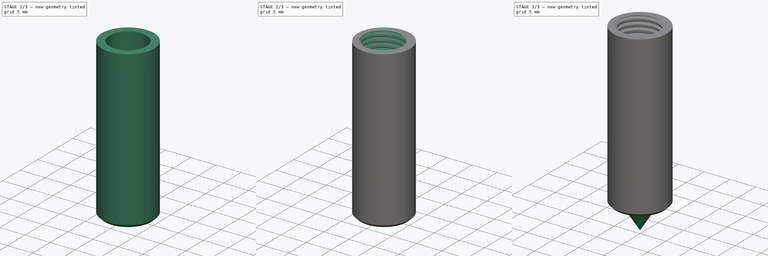
[diagram: build sequence overview — one tinted view per stage of 3, left to right]
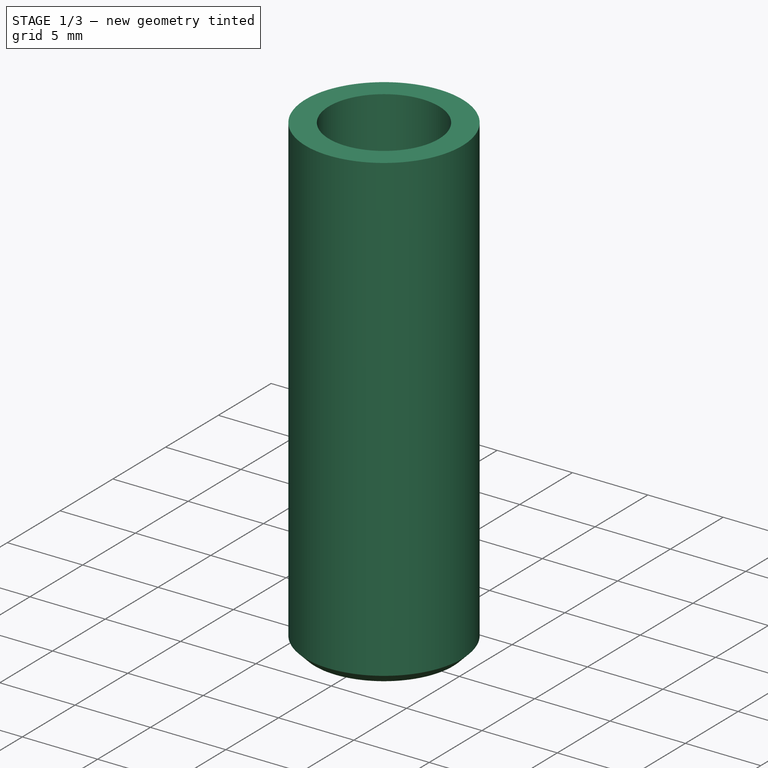
[diagram: stage 1 of 3 — iso view after this stage's code; geometry added in this stage tinted green]
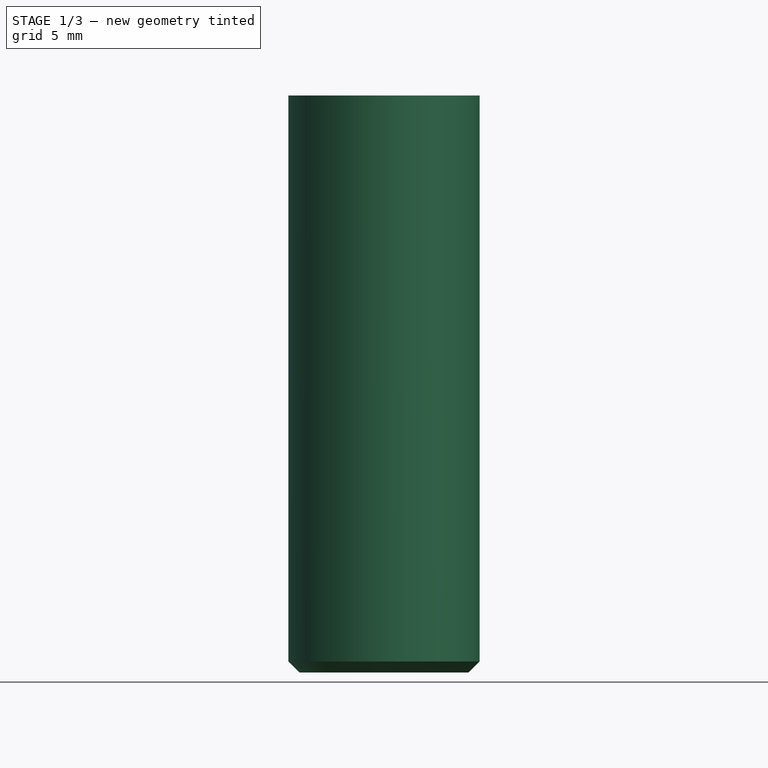
[diagram: stage 1 of 3 — front view after this stage's code; geometry added in this stage tinted green]
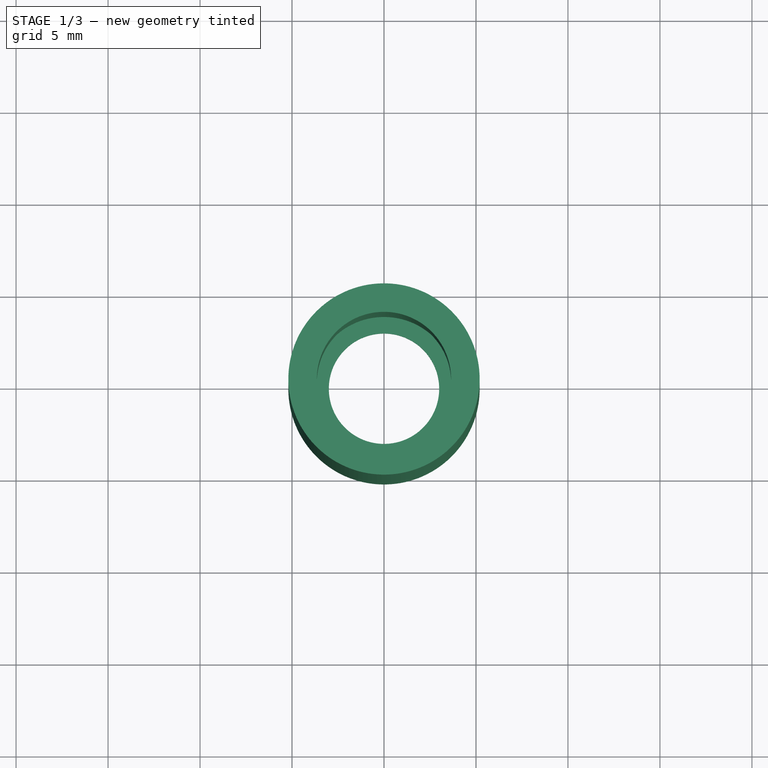
[diagram: stage 1 of 3 — top view after this stage's code; geometry added in this stage tinted green]
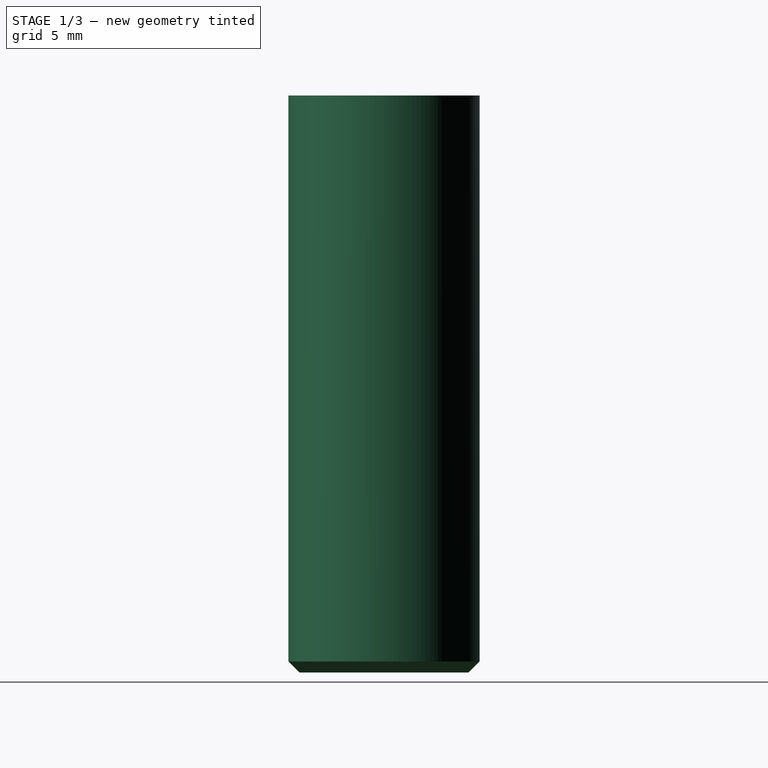
[diagram: stage 1 of 3 — right view after this stage's code; geometry added in this stage tinted green]
FCSTD DOCUMENT  (FreeCAD 2023.131R26244 +5365 (Git))
Label: PortaPunta-PINDA
License: All rights reserved
LicenseURL: http://en.wikipedia.org/wiki/All_rights_reserved
objects: Sketcher::SketchObject×3, PartDesign::Revolution×2, PartDesign::Body×2, PartDesign::Pocket×1, Part::SubShapeBinder×1, PartDesign::Chamfer×1, PartDesign::Hole×1
note: 24 computed .brp shape members not serialized (recipe doc carries the construction recipe); baked Part::Feature solids carry a one-line shape summary decoded from their .brp

FEATURE [PartDesign::Body] Body  label="Punta-CR-VPH1"
  AutoGroupSolids = false
  ClaimAllChildren = false
  ExportMode = 0
  FixShape = 1
  Group = -> [Sketch,Revolution,Sketch001,Pocket]
  InvalidShape = false
  Origin = -> Origin
  Tip = -> Pocket
  TreeRank = 12
  ValidateShape = false
  _ExportChildren = -> [Revolution,Pocket]
  _GroupVersion = 1
FEATURE [Part::SubShapeBinder] Import  label="Import(Sketch)"
  BindCopyOnChange = 0
  BindMode = 0
  ClaimChildren = false
  Context = -> Body001 [Import.]
  EdgeTolerance = 1e-06
  FillStyle = 0
  FixShape = 1
  Fuse = false
  InvalidShape = false
  MakeFace = false
  MergeEdges = true
  OffsetFill = false
  OffsetIntersection = false
  OffsetJoinType = 0
  OffsetOpenResult = false
  Outline = false
  PartialLoad = false
  Relative = true
  SplitEdges = false
  Support = -> [Body[Sketch.]]
  TightBound = false
  TreeRank = 30
  ValidateShape = false
  _Version = 8
FEATURE [Sketcher::SketchObject] Sketch002
  ArcFitTolerance = 1e-06
  AttachmentSupport = -> [XZ_Plane001]
  ExternalBSplineMaxDegree = 5
  ExternalBSplineTolerance = 0.0001
  ExternalGeometry = -> [Import]
  FixShape = 1
  FullyConstrained = true
  InternalTolerance = 1e-06
  InvalidShape = false
  MakeInternals = false
  MapMode = 5
  Placement = pos=(0,0,0) rot=(1,0,0;1.5708rad)
  Support = -> [XZ_Plane001]
  TreeRank = 29
  ValidateShape = false
  sketch-geometry (9):
    g0: LineSegment StartX=3.65 StartY=36 StartZ=0 EndX=3.65 EndY=25 EndZ=0
    g1: LineSegment StartX=3.65 StartY=25 StartZ=0 EndX=3.9 EndY=25 EndZ=0
    g2: LineSegment StartX=3.9 StartY=25 StartZ=0 EndX=3.9 EndY=5.63636 EndZ=0
    g3: LineSegment StartX=3.9 StartY=5.63636 StartZ=0 EndX=3 EndY=5.63636 EndZ=0
    g4: LineSegment StartX=3 StartY=5.63636 StartZ=0 EndX=3 EndY=4.63636 EndZ=0
    g5: LineSegment StartX=3 StartY=4.63636 StartZ=0 EndX=5.2 EndY=4.63636 EndZ=0
    g6: LineSegment StartX=5.2 StartY=4.63636 StartZ=0 EndX=5.2 EndY=36 EndZ=0
    g7: LineSegment StartX=5.2 StartY=36 StartZ=0 EndX=3.65 EndY=36 EndZ=0
    g8: GeomPoint [constr] X=3 Y=9.63636 Z=0
  constraints (27):
    c: Vertical(g0)
    c: Coincident(g0,g1)
    c: Coincident(g1,g2)
    c: Vertical(g2)
    c: Coincident(g2,g3)
    c: Horizontal(g3)
    c: Coincident(g3,g4)
    c: Vertical(g4)
    c: Coincident(g4,g5)
    c: Horizontal(g5)
    c: Coincident(g5,g6)
    c: Vertical(g6)
    c: Coincident(g6,g7)
    c: Coincident(g7,g0)
    c: Horizontal(g7)
    c: Distance(g-3,g2) = 0.3
    c: DistanceY(g-1,g-3) = 8.5
    c: Distance(g-3,g4) = 0.5
    c: Tangent(g1,g-4)
    c: Distance(g4) = 1
    c: Distance(g0) = 11
    c: DistanceX(g-2,g6) = 5.2
    c: DistanceX(g-2,g1) = 3.9
    c: Distance(g-4,g0) = 0.05
    c: PointOnObject(g8,g-3)
    c: PointOnObject(g8,g4)
    c: DistanceY(g3,g8) = 4
FEATURE [PartDesign::Revolution] Revolution001
  AddSubType = 0
  Angle = 360
  Axis = (0,-2e-16,1)
  Base = (0,0,0)
  ClaimChildren = false
  Fit = 0
  FitJoin = 0
  FixShape = 1
  InnerFit = 0
  InnerFitJoin = 0
  InvalidShape = false
  Linearize = true
  NewSolid = false
  Profile = -> Sketch002
  ReferenceAxis = -> Sketch002 [V_Axis]
  Reversed = true
  Suppress = false
  TreeRank = 31
  ValidateShape = false
  _ProfileBasedVersion = 1
FEATURE [PartDesign::Chamfer] Chamfer
  AddSubType = 0
  Angle = 45
  Base = -> Revolution001 [Face6]
  BaseFeature = -> Revolution001
  ChamferType = 0
  FixShape = 1
  FlipDirection = false
  InvalidShape = false
  NewSolid = false
  Size = 0.6
  Size2 = 1
  SupportTransform = false
  Suppress = false
  TreeRank = 32
  ValidateShape = false
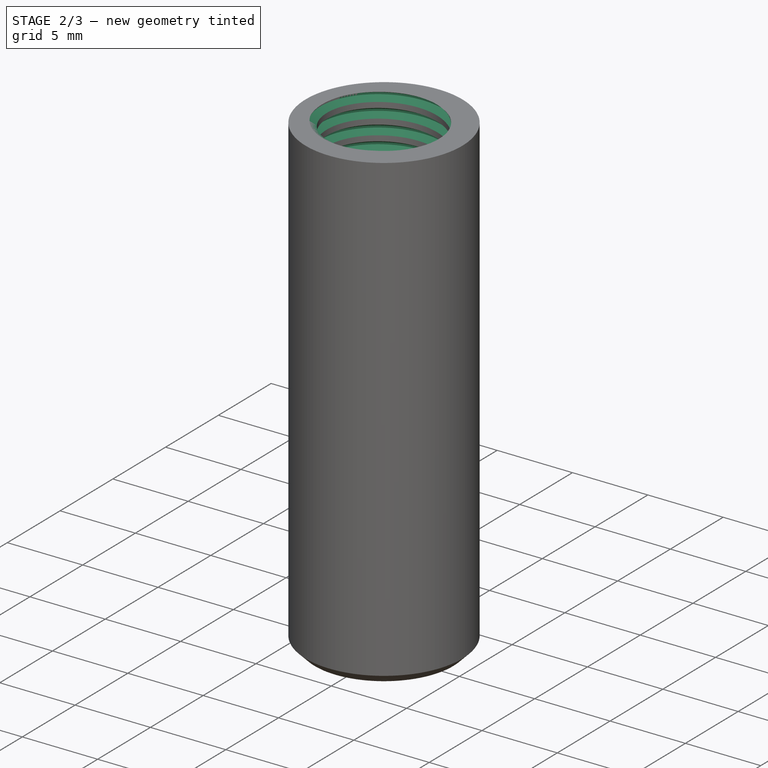
[diagram: stage 2 of 3 — iso view after this stage's code; geometry added in this stage tinted green]
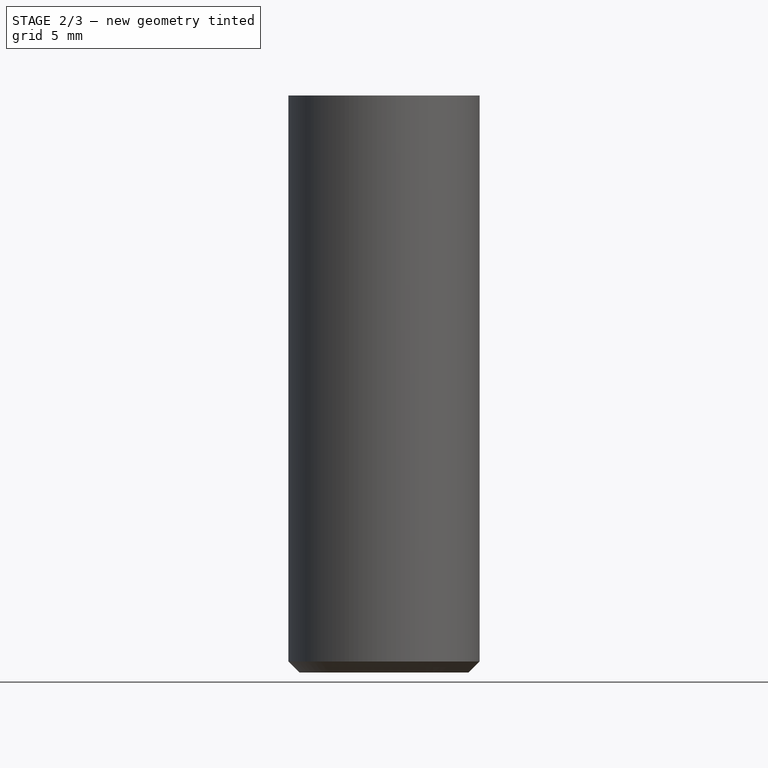
[diagram: stage 2 of 3 — front view after this stage's code; geometry added in this stage tinted green]
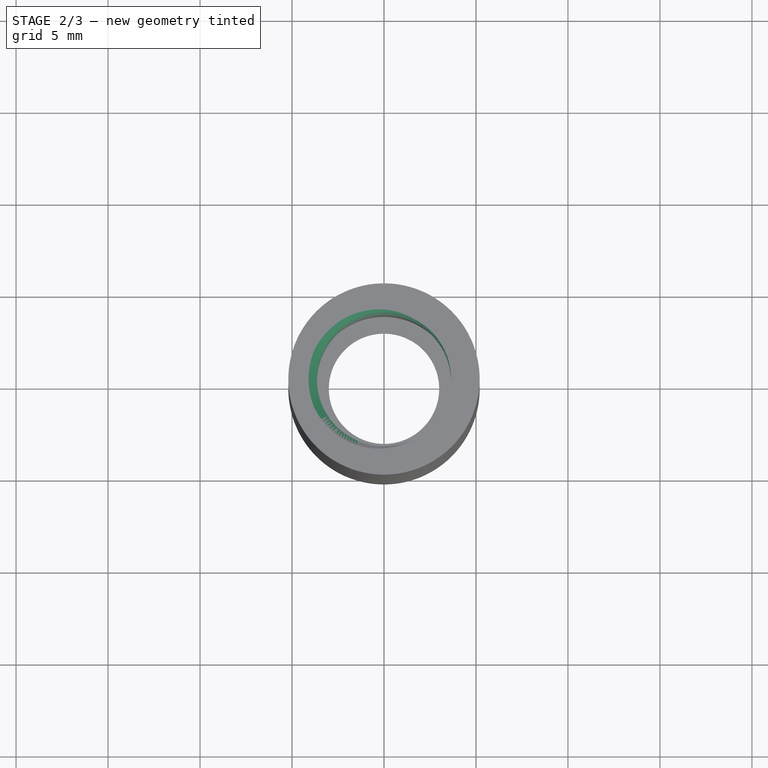
[diagram: stage 2 of 3 — top view after this stage's code; geometry added in this stage tinted green]
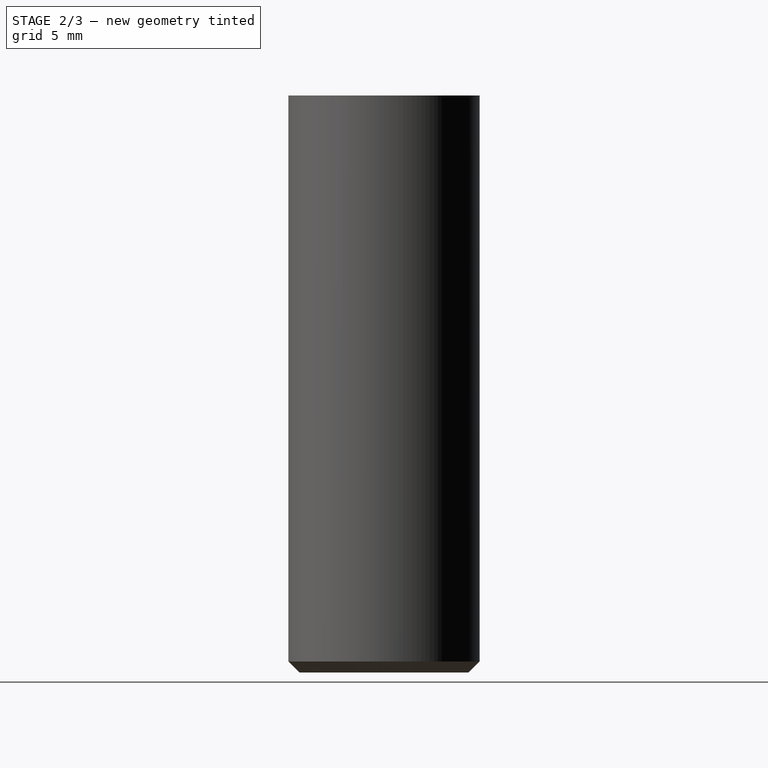
[diagram: stage 2 of 3 — right view after this stage's code; geometry added in this stage tinted green]
FEATURE [PartDesign::Hole] Hole
  AddSubType = 1
  BaseFeature = -> Chamfer
  ClaimChildren = false
  CustomThreadClearance = 0.2
  Depth = 10
  DepthType = 0
  Diameter = 7.2
  DrillForDepth = false
  DrillPoint = 0
  DrillPointAngle = 118
  Fit = 0
  FitJoin = 0
  FixShape = 1
  HoleCutCountersinkAngle = 90
  HoleCutCustomValues = false
  HoleCutDepth = 0
  HoleCutDiameter = 7.2
  HoleCutType = 0
  InnerFit = 0
  InnerFitJoin = 0
  InvalidShape = false
  Linearize = true
  ModelThread = true
  NewSolid = false
  Profile = -> Chamfer [Edge15]
  Suppress = false
  Tapered = false
  TaperedAngle = 90
  ThreadClass = 9
  ThreadDepth = 10
  ThreadDepthType = 0
  ThreadDirection = 0
  ThreadFit = 0
  ThreadSize = 18
  ThreadType = 2
  Threaded = true
  TreeRank = 33
  UseCustomThreadClearance = true
  ValidateShape = false
  _ProfileBasedVersion = 1
FEATURE [PartDesign::Body] Body001  label="Supporto"
  AutoGroupSolids = false
  ClaimAllChildren = false
  ExportMode = 0
  FixShape = 1
  Group = -> [Sketch002,Import,Revolution001,Chamfer,Hole]
  InvalidShape = false
  Origin = -> Origin001
  Tip = -> Hole
  TreeRank = 26
  ValidateShape = false
  _ExportChildren = -> [Import,Revolution001,Chamfer,Hole]
  _GroupVersion = 1
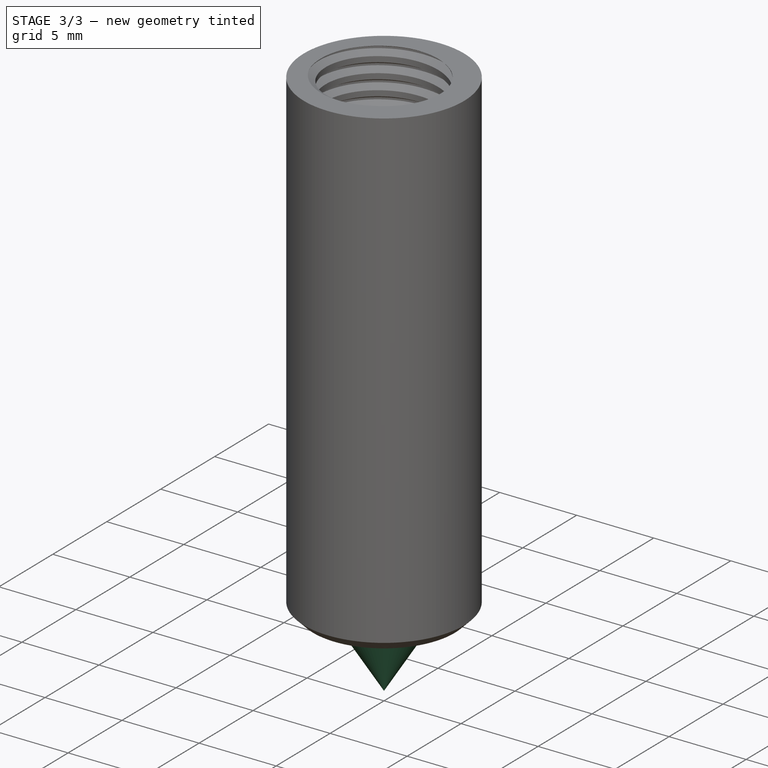
[diagram: stage 3 of 3 — iso view after this stage's code; geometry added in this stage tinted green]
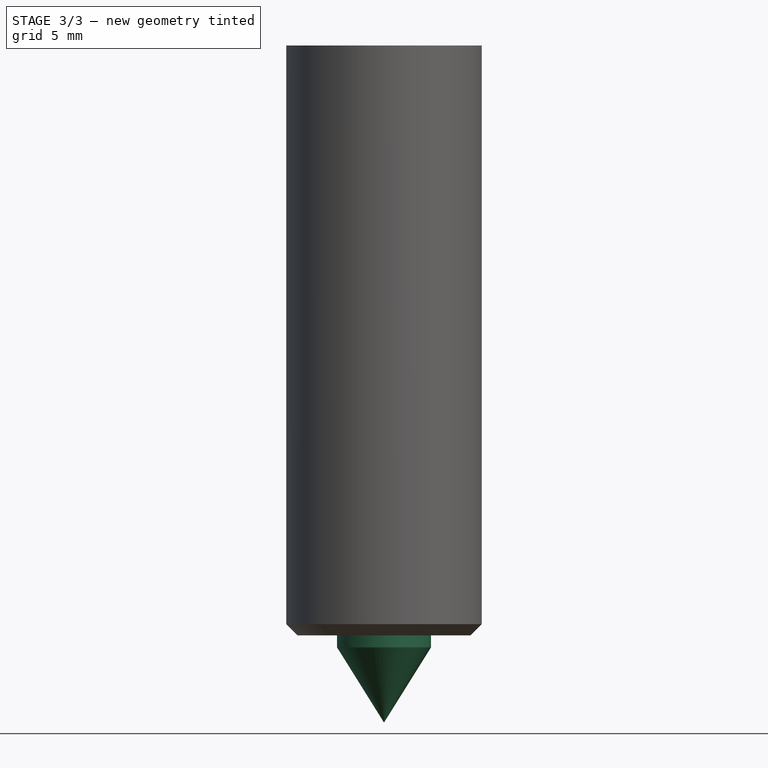
[diagram: stage 3 of 3 — front view after this stage's code; geometry added in this stage tinted green]
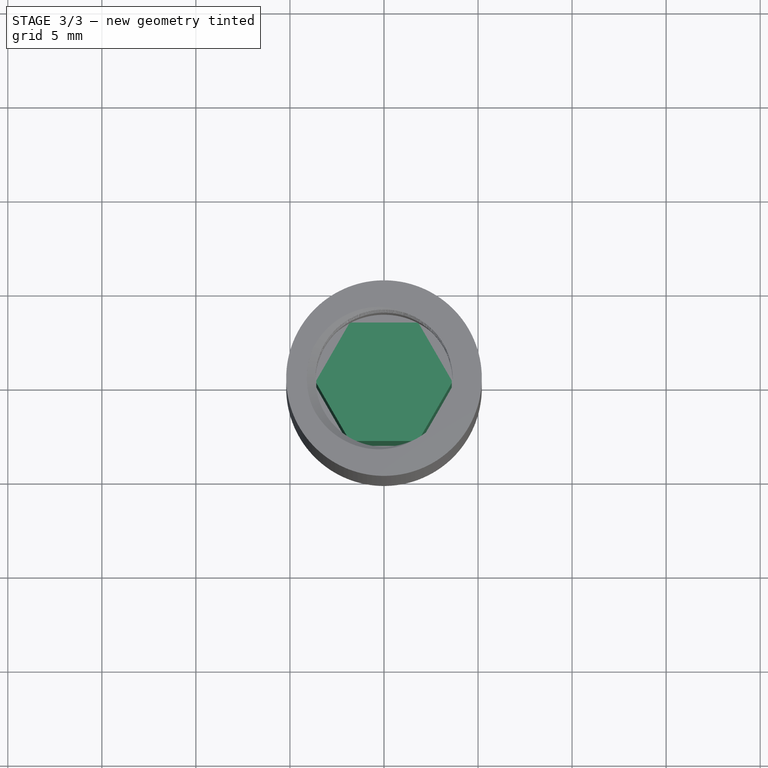
[diagram: stage 3 of 3 — top view after this stage's code; geometry added in this stage tinted green]
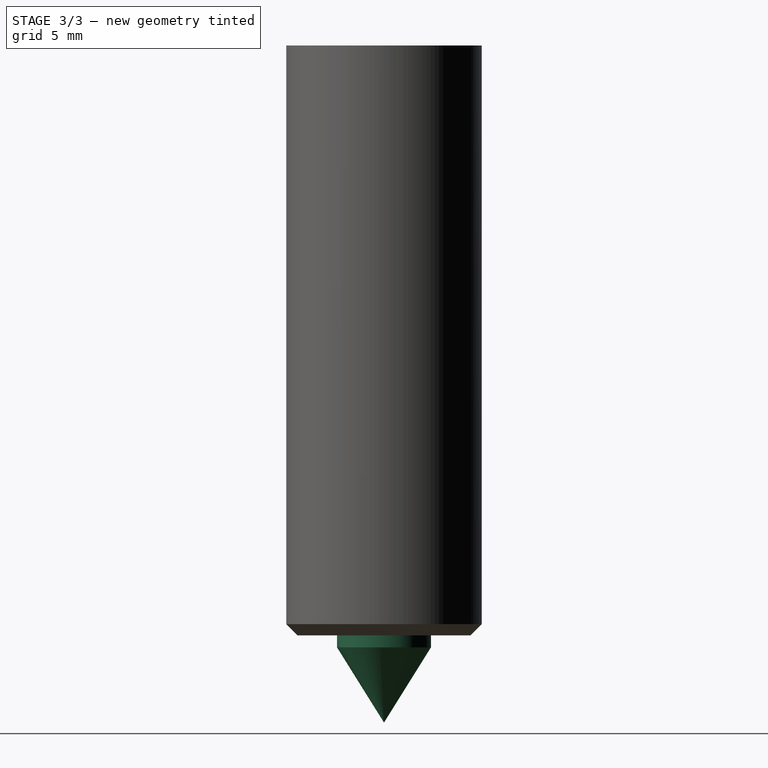
[diagram: stage 3 of 3 — right view after this stage's code; geometry added in this stage tinted green]
FEATURE [Sketcher::SketchObject] Sketch
  ArcFitTolerance = 1e-06
  AttachmentSupport = -> [XZ_Plane]
  ExternalBSplineMaxDegree = 5
  ExternalBSplineTolerance = 0.0001
  FixShape = 1
  FullyConstrained = true
  InternalTolerance = 1e-06
  InvalidShape = false
  MakeInternals = false
  MapMode = 5
  Placement = pos=(0,0,0) rot=(1,0,0;1.5708rad)
  Support = -> [XZ_Plane]
  TreeRank = 13
  ValidateShape = false
  expr: Constraints[14] = 5 / 2
  expr: Constraints[16] = 7.2 / 2
  sketch-geometry (6):
    g0: LineSegment StartX=0 StartY=0 StartZ=0 EndX=2.5 EndY=4 EndZ=0
    g1: LineSegment StartX=2.5 StartY=4 StartZ=0 EndX=2.5 EndY=8.5 EndZ=0
    g2: LineSegment StartX=2.5 StartY=8.5 StartZ=0 EndX=3.6 EndY=11 EndZ=0
    g3: LineSegment StartX=3.6 StartY=11 StartZ=0 EndX=3.6 EndY=25 EndZ=0
    g4: LineSegment StartX=3.6 StartY=25 StartZ=0 EndX=0 EndY=25 EndZ=0
    g5: LineSegment StartX=0 StartY=25 StartZ=0 EndX=0 EndY=0 EndZ=0
  constraints (17):
    c: Coincident(g-1,g0)
    c: Coincident(g0,g1)
    c: Vertical(g1)
    c: Coincident(g1,g2)
    c: Coincident(g2,g3)
    c: Vertical(g3)
    c: Coincident(g3,g4)
    c: PointOnObject(g4,g-2)
    c: Horizontal(g4)
    c: Coincident(g4,g5)
    c: Coincident(g5,g0)
    c: Distance(g5) = 25
    c: Distance(g3) = 14
    c: DistanceY(g-1,g1) = 8.5
    c: Distance(g0,g5) = 2.5
    c: DistanceY(g-1,g0) = 4
    c: Distance(g4) = 3.6
FEATURE [PartDesign::Revolution] Revolution
  AddSubType = 0
  Angle = 360
  Axis = (0,-2e-16,1)
  Base = (0,0,0)
  ClaimChildren = false
  Fit = 0
  FitJoin = 0
  FixShape = 1
  InnerFit = 0
  InnerFitJoin = 0
  InvalidShape = false
  Linearize = true
  NewSolid = false
  Profile = -> Sketch
  ReferenceAxis = -> Sketch [V_Axis]
  Reversed = true
  Suppress = false
  TreeRank = 14
  ValidateShape = false
  _ProfileBasedVersion = 1
FEATURE [Sketcher::SketchObject] Sketch001
  ArcFitTolerance = 1e-06
  AttachmentSupport = -> [XY_Plane]
  ExternalBSplineMaxDegree = 5
  ExternalBSplineTolerance = 0.0001
  FixShape = 1
  FullyConstrained = true
  InternalTolerance = 1e-06
  InvalidShape = false
  MakeInternals = false
  MapMode = 5
  Support = -> [XY_Plane]
  TreeRank = 27
  ValidateShape = false
  sketch-geometry (8):
    g0: LineSegment StartX=1.81865 StartY=3.15 StartZ=0 EndX=-1.81865 EndY=3.15 EndZ=0
    g1: LineSegment StartX=-1.81865 StartY=3.15 StartZ=0 EndX=-3.63731 EndY=-9.3e-15 EndZ=0
    g2: LineSegment StartX=-3.63731 StartY=-9.4e-15 StartZ=0 EndX=-1.81865 EndY=-3.15 EndZ=0
    g3: LineSegment StartX=-1.81865 StartY=-3.15 StartZ=0 EndX=1.81865 EndY=-3.15 EndZ=0
    g4: LineSegment StartX=1.81865 StartY=-3.15 StartZ=0 EndX=3.63731 EndY=-8.4e-15 EndZ=0
    g5: LineSegment StartX=3.63731 StartY=-8.6e-15 StartZ=0 EndX=1.81865 EndY=3.15 EndZ=0
    g6: Circle [constr] CenterX=0 CenterY=0 CenterZ=0 NormalX=0 NormalY=0 NormalZ=1 AngleXU=0 Radius=3.63731
    g7: Circle CenterX=0 CenterY=0 CenterZ=0 NormalX=0 NormalY=0 NormalZ=1 AngleXU=0 Radius=5
  constraints (18):
    c: Coincident(g0,g1)
    c: Coincident(g1,g2)
    c: Coincident(g2,g3)
    c: Coincident(g3,g4)
    c: Coincident(g4,g5)
    c: Coincident(g5,g0)
    c: Equal(g0, g1-g5) x5
    c: PointOnObject(g0,g6)
    c: PointOnObject(g1,g6)
    c: PointOnObject(g2,g6)
    c: PointOnObject(g3,g6)
    c: PointOnObject(g4,g6)
    c: PointOnObject(g5,g6)
    c: Coincident(g6,g-1)
    c: Coincident(g7,g6)
    c: Horizontal(g0)
    c: Distance(g0,g3) = 6.3
    c: Diameter(g7) = 10
FEATURE [PartDesign::Pocket] Pocket
  AddSubType = 1
  AutoTaperInnerAngle = true
  BaseFeature = -> Revolution
  CheckUpToFaceLimits = true
  ClaimChildren = false
  Fit = 0
  FitJoin = 0
  FixShape = 1
  InnerFit = 0
  InnerFitJoin = 0
  InvalidShape = false
  Length = 5
  Length2 = 100
  Linearize = true
  Midplane = true
  NewSolid = false
  Profile = -> Sketch001
  Suppress = false
  TaperInnerAngle = 0
  TaperInnerAngleRev = 0
  TreeRank = 28
  Type = 1
  ValidateShape = false
  _ProfileBasedVersion = 1
  _Version = 1
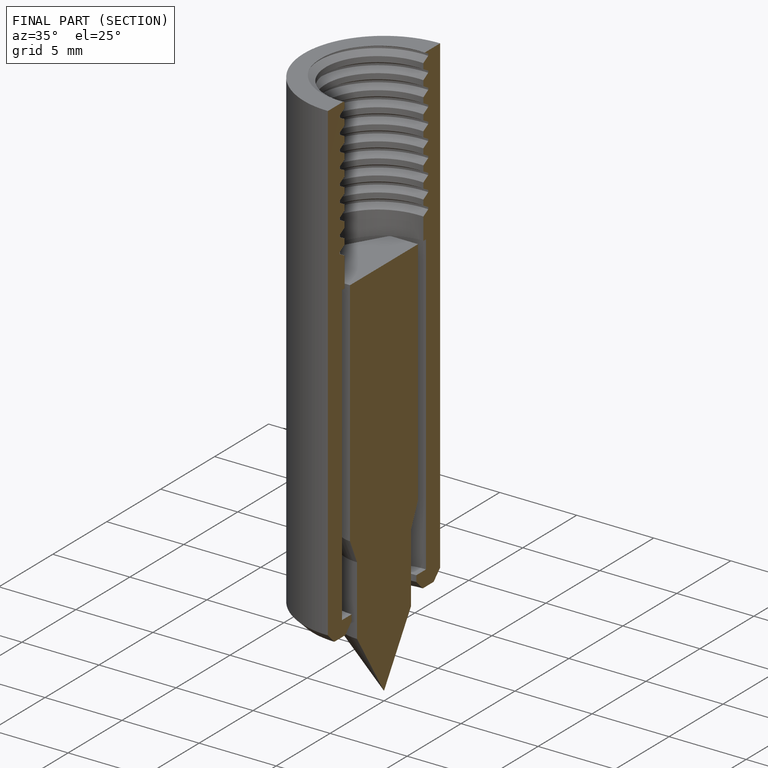
[diagram: finished part — half-section view (interior)]
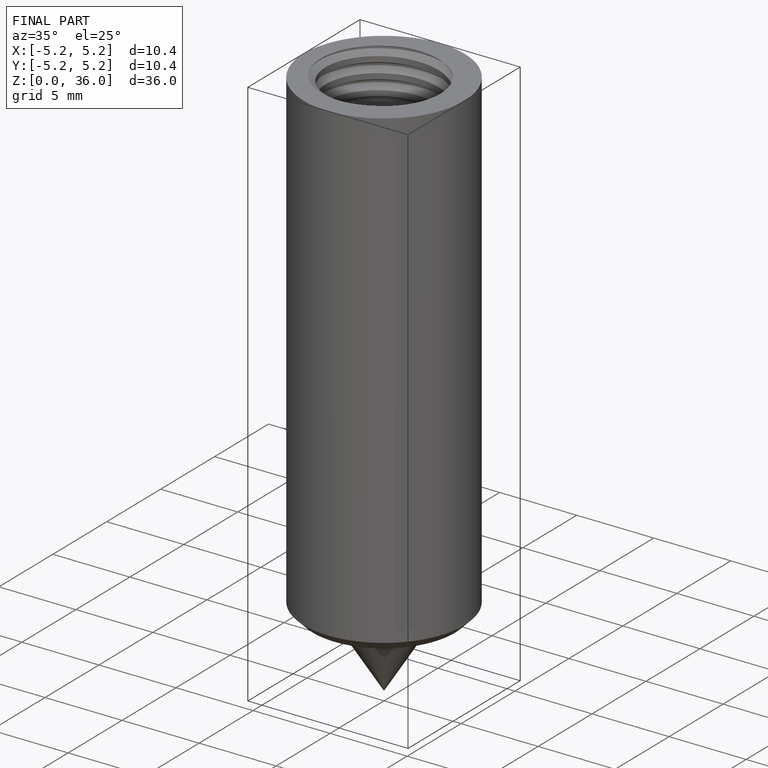
[diagram: finished part — iso view with bounding-box wireframe]
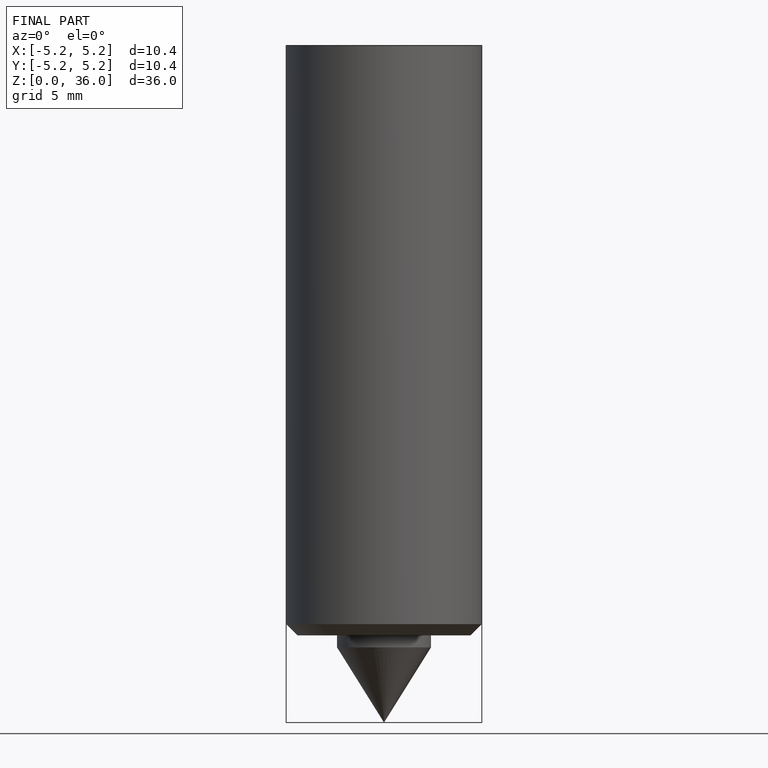
[diagram: finished part — front view with bounding-box wireframe]
